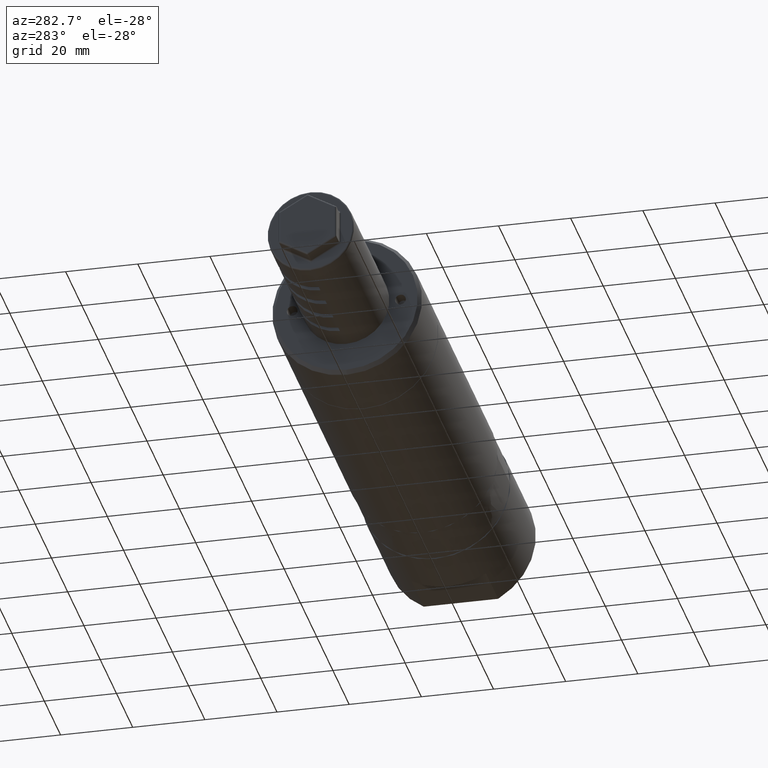
[diagram: clean part render]
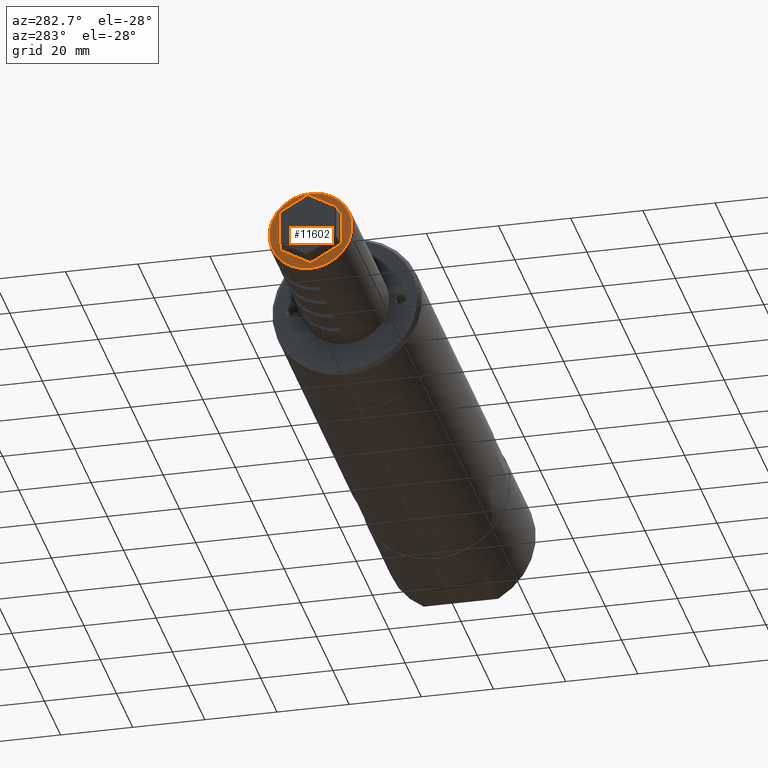
[diagram: same view with one face highlighted and labeled with its STEP entity id]
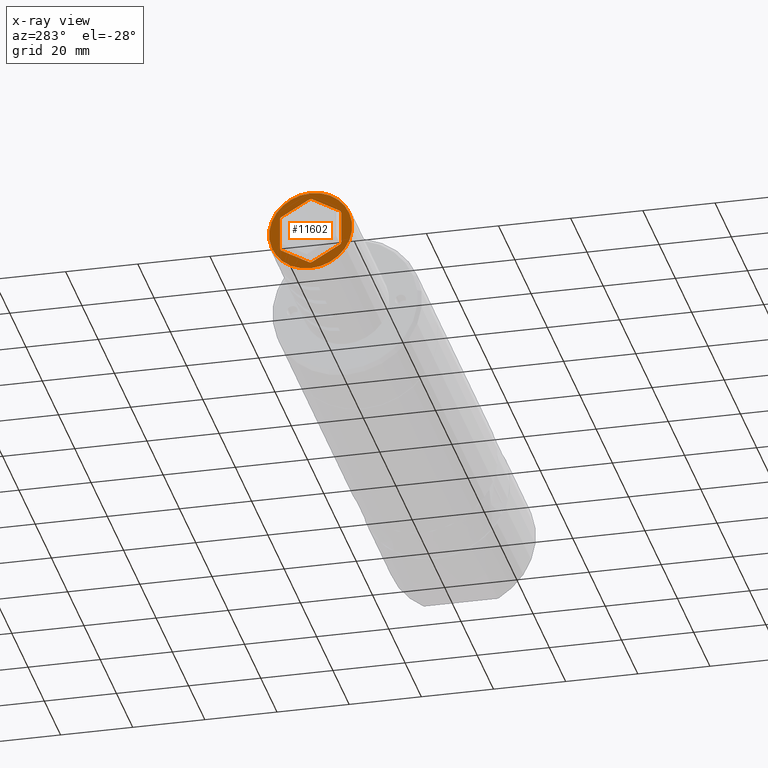
[diagram: x-ray of the same camera — body ghosted, the highlighted face saturated]
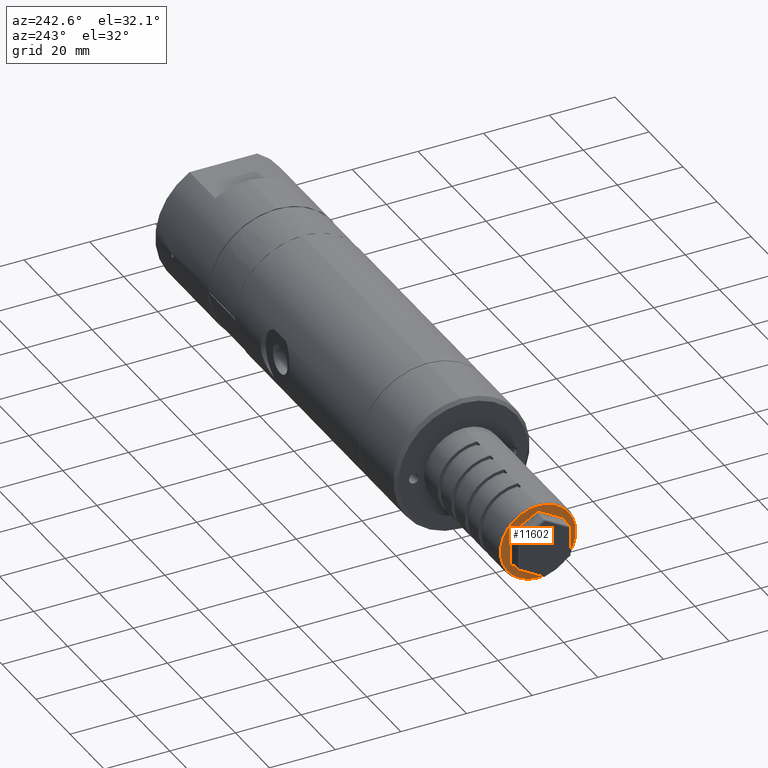
[diagram: same view with one face highlighted and labeled with its STEP entity id]
A machine part, auxiliary view. The second image highlights one B-rep face of the part: STEP entity #11602.
The next image is the same camera in x-ray: the body ghosted, the highlighted face saturated — about 0% of this face is hidden behind the body in this view.
A second angle (auxiliary view) of the same face is appended — the face is thin or edge-on in the first view.
In plain terms, the highlighted planar face has unit normal (-1, 0, 0).
Its self-contained STEP definition (entity closure, byte-faithful):
#187 = DIRECTION ( 'NONE',  ( 0.0000000000000000000, 2.775557561562890400E-016, 1.000000000000000000 ) ) ;
#434 = CARTESIAN_POINT ( 'NONE',  ( -184.9000000000000100, 4.250000000000000000, -7.361215932167730200 ) ) ;
#548 = AXIS2_PLACEMENT_3D ( 'NONE', #716, #12032, #10832 ) ;
#716 = CARTESIAN_POINT ( 'NONE',  ( -184.9000000000000100, 0.0000000000000000000, 0.0000000000000000000 ) ) ;
#753 = EDGE_CURVE ( 'NONE', #15809, #3723, #8546, .T. ) ;
#793 = CARTESIAN_POINT ( 'NONE',  ( -184.9000000000000100, 8.500000000000000000, 4.330127018922191000 ) ) ;
#1054 = VERTEX_POINT ( 'NONE', #12080 ) ;
#1245 = ORIENTED_EDGE ( 'NONE', *, *, #14751, .F. ) ;
#1590 = LINE ( 'NONE', #6456, #12224 ) ;
#2001 = DIRECTION ( 'NONE',  ( -0.0000000000000000000, 0.8660254037844387100, 0.4999999999999998900 ) ) ;
#2009 = AXIS2_PLACEMENT_3D ( 'NONE', #9109, #17909, #16376 ) ;
#2130 = CIRCLE ( 'NONE', #2009, 1.000000000000000000 ) ;
#2300 = CARTESIAN_POINT ( 'NONE',  ( -184.9000000000000100, 8.500000000000000000, -4.330127018922195400 ) ) ;
#2362 = LINE ( 'NONE', #14860, #3268 ) ;
#2468 = CIRCLE ( 'NONE', #15803, 1.000000000000000000 ) ;
#2473 = ORIENTED_EDGE ( 'NONE', *, *, #3313, .F. ) ;
#2821 = CIRCLE ( 'NONE', #548, 11.50000000000000000 ) ;
#2837 = VERTEX_POINT ( 'NONE', #7528 ) ;
#3122 = DIRECTION ( 'NONE',  ( 0.0000000000000000000, 2.775557561562890400E-016, 1.000000000000000000 ) ) ;
#3268 = VECTOR ( 'NONE', #7688, 1000.000000000000000 ) ;
#3313 = EDGE_CURVE ( 'NONE', #2837, #3723, #11047, .T. ) ;
#3723 = VERTEX_POINT ( 'NONE', #13095 ) ;
#3782 = DIRECTION ( 'NONE',  ( 0.0000000000000000000, 0.0000000000000000000, 1.000000000000000000 ) ) ;
#3878 = CARTESIAN_POINT ( 'NONE',  ( -184.9000000000000100, 8.000000000000000000, -5.196152422706630200 ) ) ;
#4022 = ORIENTED_EDGE ( 'NONE', *, *, #14111, .T. ) ;
#4197 = CARTESIAN_POINT ( 'NONE',  ( -184.9000000000000100, -1.822320145838256600E-015, -11.50000000000000000 ) ) ;
#4447 = DIRECTION ( 'NONE',  ( -1.000000000000000000, 0.0000000000000000000, 0.0000000000000000000 ) ) ;
#4707 = EDGE_CURVE ( 'NONE', #15809, #13715, #16072, .T. ) ;
#4732 = ORIENTED_EDGE ( 'NONE', *, *, #13626, .T. ) ;
#4892 = FACE_BOUND ( 'NONE', #18586, .T. ) ;
#5004 = EDGE_CURVE ( 'NONE', #15339, #15279, #1590, .T. ) ;
#5069 = CIRCLE ( 'NONE', #11198, 1.000000000000000900 ) ;
#5109 = DIRECTION ( 'NONE',  ( 0.0000000000000000000, 0.0000000000000000000, 1.000000000000000000 ) ) ;
#5156 = ORIENTED_EDGE ( 'NONE', *, *, #16051, .F. ) ;
#5659 = VECTOR ( 'NONE', #16240, 1000.000000000000000 ) ;
#5732 = AXIS2_PLACEMENT_3D ( 'NONE', #11741, #13062, #14509 ) ;
#5819 = DIRECTION ( 'NONE',  ( -1.000000000000000000, 0.0000000000000000000, 0.0000000000000000000 ) ) ;
#5870 = VERTEX_POINT ( 'NONE', #7700 ) ;
#6097 = DIRECTION ( 'NONE',  ( -1.000000000000000000, 0.0000000000000000000, 0.0000000000000000000 ) ) ;
#6172 = EDGE_CURVE ( 'NONE', #18051, #10672, #2468, .T. ) ;
#6354 = VERTEX_POINT ( 'NONE', #13816 ) ;
#6390 = CARTESIAN_POINT ( 'NONE',  ( -184.9000000000000100, 7.500000000000000000, 4.330127018922191000 ) ) ;
#6456 = CARTESIAN_POINT ( 'NONE',  ( -184.9000000000000100, -4.250000000000000000, -7.361215932167730200 ) ) ;
#6537 = VECTOR ( 'NONE', #2001, 1000.000000000000000 ) ;
#6921 = DIRECTION ( 'NONE',  ( -0.0000000000000000000, -0.8660254037844383700, 0.5000000000000003300 ) ) ;
#6928 = VERTEX_POINT ( 'NONE', #14636 ) ;
#7123 = CIRCLE ( 'NONE', #14679, 11.50000000000000000 ) ;
#7314 = ORIENTED_EDGE ( 'NONE', *, *, #14115, .T. ) ;
#7528 = CARTESIAN_POINT ( 'NONE',  ( -184.9000000000000100, 2.627049005511469200E-015, 9.660254037844390900 ) ) ;
#7631 = ORIENTED_EDGE ( 'NONE', *, *, #753, .T. ) ;
#7688 = DIRECTION ( 'NONE',  ( -0.0000000000000000000, 2.775557561562890400E-016, 1.000000000000000000 ) ) ;
#7700 = CARTESIAN_POINT ( 'NONE',  ( -184.9000000000000100, 3.191891195797323900E-015, 11.50000000000000000 ) ) ;
#7918 = ORIENTED_EDGE ( 'NONE', *, *, #18352, .F. ) ;
#7951 = CARTESIAN_POINT ( 'NONE',  ( -184.9000000000000100, -0.5000000000000000000, -9.526279441628821200 ) ) ;
#8036 = FACE_OUTER_BOUND ( 'NONE', #13118, .T. ) ;
#8121 = ORIENTED_EDGE ( 'NONE', *, *, #5004, .T. ) ;
#8358 = ORIENTED_EDGE ( 'NONE', *, *, #13076, .T. ) ;
#8546 = LINE ( 'NONE', #12836, #11023 ) ;
#8778 = AXIS2_PLACEMENT_3D ( 'NONE', #16934, #11237, #3782 ) ;
#9082 = CIRCLE ( 'NONE', #9661, 1.000000000000000000 ) ;
#9109 = CARTESIAN_POINT ( 'NONE',  ( -184.9000000000000100, 1.011533485349884100E-015, -8.660254037844390900 ) ) ;
#9609 = AXIS2_PLACEMENT_3D ( 'NONE', #16040, #5819, #187 ) ;
#9661 = AXIS2_PLACEMENT_3D ( 'NONE', #14661, #16124, #10393 ) ;
#9974 = VERTEX_POINT ( 'NONE', #13857 ) ;
#10074 = CARTESIAN_POINT ( 'NONE',  ( -184.9000000000000100, 7.500000000000000000, -4.330127018922195400 ) ) ;
#10177 = PLANE ( 'NONE',  #9609 ) ;
#10272 = CARTESIAN_POINT ( 'NONE',  ( -184.9000000000000100, 0.0000000000000000000, 0.0000000000000000000 ) ) ;
#10331 = CARTESIAN_POINT ( 'NONE',  ( -184.9000000000000100, 2.349493249355180000E-015, 8.660254037844390900 ) ) ;
#10393 = DIRECTION ( 'NONE',  ( 0.0000000000000000000, 0.0000000000000000000, 1.000000000000000000 ) ) ;
#10672 = VERTEX_POINT ( 'NONE', #3878 ) ;
#10737 = EDGE_CURVE ( 'NONE', #6928, #6354, #12303, .T. ) ;
#10770 = EDGE_CURVE ( 'NONE', #5870, #12031, #7123, .T. ) ;
#10832 = DIRECTION ( 'NONE',  ( 0.0000000000000000000, 2.775557561562890400E-016, 1.000000000000000000 ) ) ;
#11023 = VECTOR ( 'NONE', #6921, 1000.000000000000100 ) ;
#11047 = CIRCLE ( 'NONE', #5732, 1.000000000000000900 ) ;
#11181 = VECTOR ( 'NONE', #15636, 1000.000000000000000 ) ;
#11198 = AXIS2_PLACEMENT_3D ( 'NONE', #10331, #4447, #11766 ) ;
#11237 = DIRECTION ( 'NONE',  ( -1.000000000000000000, 0.0000000000000000000, 0.0000000000000000000 ) ) ;
#11336 = CARTESIAN_POINT ( 'NONE',  ( -184.9000000000000100, -4.250000000000000000, 7.361215932167730200 ) ) ;
#11602 = ADVANCED_FACE ( 'NONE', ( #8036, #4892 ), #10177, .T. ) ;
#11616 = CARTESIAN_POINT ( 'NONE',  ( -184.9000000000000100, -8.500000000000000000, 4.330127018922199900 ) ) ;
#11692 = DIRECTION ( 'NONE',  ( -1.000000000000000000, 0.0000000000000000000, 0.0000000000000000000 ) ) ;
#11741 = CARTESIAN_POINT ( 'NONE',  ( -184.9000000000000100, 2.349493249355180000E-015, 8.660254037844390900 ) ) ;
#11766 = DIRECTION ( 'NONE',  ( 0.0000000000000000000, 2.775557561562887400E-016, 1.000000000000000000 ) ) ;
#12031 = VERTEX_POINT ( 'NONE', #4197 ) ;
#12032 = DIRECTION ( 'NONE',  ( -1.000000000000000000, 0.0000000000000000000, 0.0000000000000000000 ) ) ;
#12080 = CARTESIAN_POINT ( 'NONE',  ( -184.9000000000000100, -8.500000000000000000, -4.330127018922185700 ) ) ;
#12100 = CARTESIAN_POINT ( 'NONE',  ( -184.9000000000000100, 8.000000000000000000, 5.196152422706630200 ) ) ;
#12224 = VECTOR ( 'NONE', #16739, 1000.000000000000000 ) ;
#12303 = LINE ( 'NONE', #11336, #11181 ) ;
#12650 = LINE ( 'NONE', #14776, #5659 ) ;
#12836 = CARTESIAN_POINT ( 'NONE',  ( -184.9000000000000100, 4.250000000000000000, 7.361215932167730200 ) ) ;
#13062 = DIRECTION ( 'NONE',  ( -1.000000000000000000, 0.0000000000000000000, 0.0000000000000000000 ) ) ;
#13076 = EDGE_CURVE ( 'NONE', #16360, #1054, #12650, .T. ) ;
#13095 = CARTESIAN_POINT ( 'NONE',  ( -184.9000000000000100, 0.5000000000000000000, 9.526279441628831900 ) ) ;
#13118 = EDGE_LOOP ( 'NONE', ( #14660, #4022 ) ) ;
#13263 = EDGE_CURVE ( 'NONE', #15339, #1054, #13549, .T. ) ;
#13549 = CIRCLE ( 'NONE', #8778, 1.000000000000000000 ) ;
#13626 = EDGE_CURVE ( 'NONE', #9974, #10672, #13740, .T. ) ;
#13715 = VERTEX_POINT ( 'NONE', #793 ) ;
#13740 = LINE ( 'NONE', #434, #6537 ) ;
#13816 = CARTESIAN_POINT ( 'NONE',  ( -184.9000000000000100, -8.000000000000000000, 5.196152422706639100 ) ) ;
#13857 = CARTESIAN_POINT ( 'NONE',  ( -184.9000000000000100, 0.5000000000000000000, -9.526279441628821200 ) ) ;
#14111 = EDGE_CURVE ( 'NONE', #12031, #5870, #2821, .T. ) ;
#14115 = EDGE_CURVE ( 'NONE', #18051, #13715, #2362, .T. ) ;
#14509 = DIRECTION ( 'NONE',  ( 0.0000000000000000000, 2.775557561562887400E-016, 1.000000000000000000 ) ) ;
#14586 = DIRECTION ( 'NONE',  ( 0.0000000000000000000, 0.0000000000000000000, 1.000000000000000000 ) ) ;
#14636 = CARTESIAN_POINT ( 'NONE',  ( -184.9000000000000100, -0.5000000000000000000, 9.526279441628831900 ) ) ;
#14660 = ORIENTED_EDGE ( 'NONE', *, *, #10770, .T. ) ;
#14661 = CARTESIAN_POINT ( 'NONE',  ( -184.9000000000000100, -7.500000000000000000, 4.330127018922199900 ) ) ;
#14679 = AXIS2_PLACEMENT_3D ( 'NONE', #10272, #6097, #3122 ) ;
#14751 = EDGE_CURVE ( 'NONE', #6928, #2837, #5069, .T. ) ;
#14776 = CARTESIAN_POINT ( 'NONE',  ( -184.9000000000000100, -8.500000000000000000, 2.359223927328454900E-015 ) ) ;
#14860 = CARTESIAN_POINT ( 'NONE',  ( -184.9000000000000100, 8.500000000000000000, -2.359223927328459600E-015 ) ) ;
#14904 = ORIENTED_EDGE ( 'NONE', *, *, #6172, .F. ) ;
#15134 = ORIENTED_EDGE ( 'NONE', *, *, #10737, .T. ) ;
#15279 = VERTEX_POINT ( 'NONE', #7951 ) ;
#15339 = VERTEX_POINT ( 'NONE', #17893 ) ;
#15636 = DIRECTION ( 'NONE',  ( -0.0000000000000000000, -0.8660254037844387100, -0.4999999999999998900 ) ) ;
#15803 = AXIS2_PLACEMENT_3D ( 'NONE', #10074, #11692, #14586 ) ;
#15809 = VERTEX_POINT ( 'NONE', #12100 ) ;
#16040 = CARTESIAN_POINT ( 'NONE',  ( -184.9000000000000100, 0.0000000000000000000, 0.0000000000000000000 ) ) ;
#16051 = EDGE_CURVE ( 'NONE', #9974, #15279, #2130, .T. ) ;
#16072 = CIRCLE ( 'NONE', #16873, 1.000000000000000000 ) ;
#16124 = DIRECTION ( 'NONE',  ( -1.000000000000000000, 0.0000000000000000000, 0.0000000000000000000 ) ) ;
#16240 = DIRECTION ( 'NONE',  ( -0.0000000000000000000, -2.775557561562890400E-016, -1.000000000000000000 ) ) ;
#16360 = VERTEX_POINT ( 'NONE', #11616 ) ;
#16376 = DIRECTION ( 'NONE',  ( 0.0000000000000000000, 2.775557561562889900E-016, 1.000000000000000000 ) ) ;
#16663 = DIRECTION ( 'NONE',  ( -1.000000000000000000, 0.0000000000000000000, 0.0000000000000000000 ) ) ;
#16739 = DIRECTION ( 'NONE',  ( -0.0000000000000000000, 0.8660254037844387100, -0.4999999999999998900 ) ) ;
#16873 = AXIS2_PLACEMENT_3D ( 'NONE', #6390, #16663, #5109 ) ;
#16934 = CARTESIAN_POINT ( 'NONE',  ( -184.9000000000000100, -7.500000000000000000, -4.330127018922185700 ) ) ;
#17798 = ORIENTED_EDGE ( 'NONE', *, *, #13263, .F. ) ;
#17893 = CARTESIAN_POINT ( 'NONE',  ( -184.9000000000000100, -8.000000000000000000, -5.196152422706630200 ) ) ;
#17909 = DIRECTION ( 'NONE',  ( -1.000000000000000000, 0.0000000000000000000, 0.0000000000000000000 ) ) ;
#18051 = VERTEX_POINT ( 'NONE', #2300 ) ;
#18352 = EDGE_CURVE ( 'NONE', #16360, #6354, #9082, .T. ) ;
#18445 = ORIENTED_EDGE ( 'NONE', *, *, #4707, .F. ) ;
#18586 = EDGE_LOOP ( 'NONE', ( #1245, #15134, #7918, #8358, #17798, #8121, #5156, #4732, #14904, #7314, #18445, #7631, #2473 ) ) ;